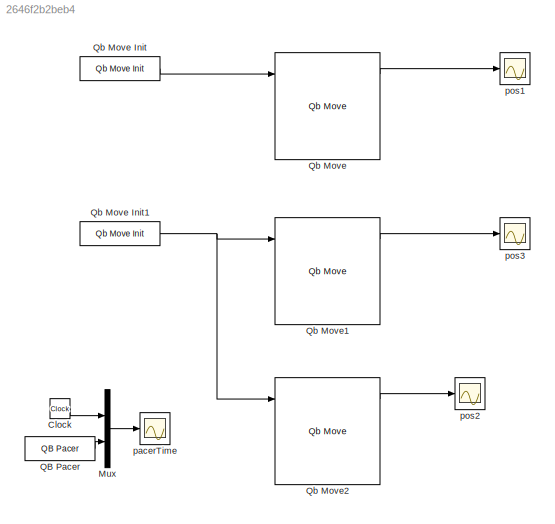
MODEL slx_2646f2b2beb4
KIND model
CONFIG AbsTol = auto
CONFIG FixedStep = .0005
CONFIG MaxStep = auto
CONFIG MinStep = auto
CONFIG RelTol = 1e-3
CONFIG SampleTimeConstraint = Unconstrained
CONFIG Solver = ode1
CONFIG SolverMode = Auto
CONFIG SolverName = ode1
CONFIG StartTime = 0.0
CONFIG StopTime = inf
BLOCK [Clock] Clock
BLOCK [Mux] Mux
  DisplayOption = bar
  Inputs = 2
  Ports = [2, 1]
BLOCK [Reference] QB Pacer  REF=QB_pacer_lib/QB Pacer
  Ports = [0, 1]
  SourceBlock = QB_pacer_lib/QB Pacer
  SourceType = RealTime_Pacer
BLOCK [Reference] Qb Move  REF=qbmove_library/Qb Move
  Ports = [4, 4]
  SourceBlock = qbmove_library/Qb Move
  SourceType = qb move
BLOCK [Reference] Qb Move Init  REF=qbmove_library/Qb Move Init
  Ports = [0, 1]
  SourceBlock = qbmove_library/Qb Move Init
  SourceType = qb Init - ISS
BLOCK [Reference] Qb Move Init1  REF=qbmove_library/Qb Move Init
  Ports = [0, 1]
  SourceBlock = qbmove_library/Qb Move Init
  SourceType = qb Init - ISS
BLOCK [Reference] Qb Move1  REF=qbmove_library/Qb Move
  Ports = [4, 4]
  SourceBlock = qbmove_library/Qb Move
  SourceType = qb move
BLOCK [Reference] Qb Move2  REF=qbmove_library/Qb Move
  Ports = [4, 4]
  SourceBlock = qbmove_library/Qb Move
  SourceType = qb move
BLOCK [Scope] pacerTime
  Ports = [1]
  ScopeSpecificationString = Simulink.scopes.TimeScopeBlockCfg('CurrentConfiguration', extmgr.ConfigurationSet(extmgr.Configuration('Core','General UI',true),extmgr.Configuration('Core','Source UI',true),extmgr.Configuration('Sources','WiredSimulink',true,'DataLoggingVariableName','ScopeData3','DataLoggingLimitDataPoints',true,'DataLoggingSaveFormat','Array','DataLoggingDecimation','1','DataLoggingDecimateData',true),extmgr.C...<+1554ch>
BLOCK [Scope] pos1
  Ports = [1]
  ScopeSpecificationString = Simulink.scopes.TimeScopeBlockCfg('CurrentConfiguration', extmgr.ConfigurationSet(extmgr.Configuration('Core','General UI',true),extmgr.Configuration('Core','Source UI',true),extmgr.Configuration('Sources','WiredSimulink',true,'DataLoggingVariableName','ScopeData3','DataLoggingSaveFormat','Array','DataLoggingDecimation','1','DataLoggingDecimateData',true),extmgr.Configuration('Visuals','Time Domai...<+1543ch>
BLOCK [Scope] pos2
  Ports = [1]
  ScopeSpecificationString = Simulink.scopes.TimeScopeBlockCfg('CurrentConfiguration', extmgr.ConfigurationSet(extmgr.Configuration('Core','General UI',true),extmgr.Configuration('Core','Source UI',true),extmgr.Configuration('Sources','WiredSimulink',true,'DataLoggingVariableName','ScopeData1','DataLoggingSaveFormat','Array','DataLoggingDecimation','1','DataLoggingDecimateData',true),extmgr.Configuration('Visuals','Time Domai...<+1544ch>
BLOCK [Scope] pos3
  Ports = [1]
  ScopeSpecificationString = Simulink.scopes.TimeScopeBlockCfg('CurrentConfiguration', extmgr.ConfigurationSet(extmgr.Configuration('Core','General UI',true),extmgr.Configuration('Core','Source UI',true),extmgr.Configuration('Sources','WiredSimulink',true,'DataLoggingVariableName','ScopeData1','DataLoggingSaveFormat','Array','DataLoggingDecimation','1','DataLoggingDecimateData',true),extmgr.Configuration('Visuals','Time Domai...<+1545ch>
LINE Clock:1 -> Mux:1
LINE Mux:1 -> pacerTime:1
LINE QB Pacer:1 -> Mux:2
NET Qb Move Init1:1 -> Qb Move1:1, Qb Move2:1
LINE Qb Move Init:1 -> Qb Move:1
LINE Qb Move1:1 -> pos3:1
LINE Qb Move2:1 -> pos2:1
LINE Qb Move:1 -> pos1:1
note: NET lines group one-source signal fan-out (src -> all destinations, sorted); 1:1 wires keep LINE
